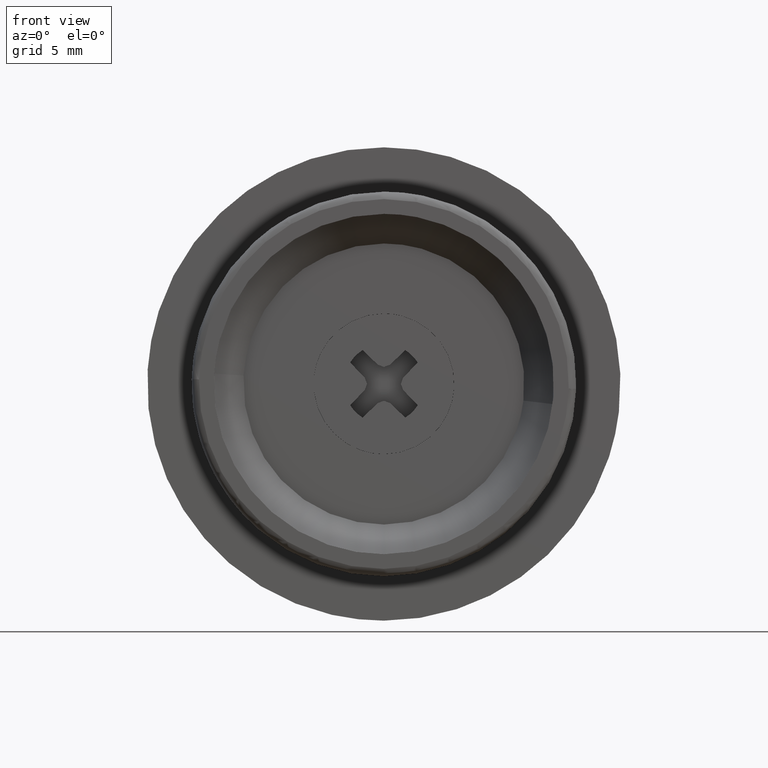
[diagram: clean part render]
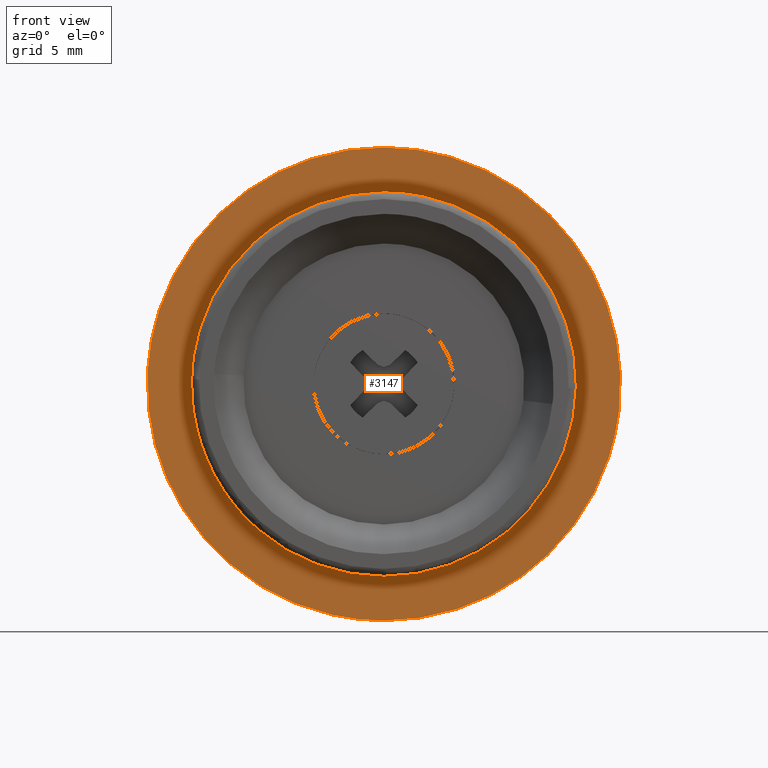
[diagram: same view with one face highlighted and labeled with its STEP entity id]
A machine part, front view. The second image highlights one B-rep face of the part: STEP entity #3147.
In plain terms, the highlighted face is a freeform B-spline surface patch.
Its self-contained STEP definition (entity closure, byte-faithful):
#1462=CARTESIAN_POINT('',(15.888153624431769,8.000000000000084,-1.888537636996336));
#1463=VERTEX_POINT('',#1462);
#1464=CARTESIAN_POINT('',(0.0,8.0,16.0));
#1465=VERTEX_POINT('',#1464);
#1466=CARTESIAN_POINT('',(15.888153624431771,8.000000000000084,-1.888537636996335));
#1467=CARTESIAN_POINT('',(15.999999999999998,8.0,-0.947580802194624));
#1468=CARTESIAN_POINT('',(16.0,8.0,-1.598567E-016));
#1469=CARTESIAN_POINT('',(15.999999999999998,8.0,15.999999999999998));
#1470=CARTESIAN_POINT('',(0.0,8.0,16.0));
#1478=(BOUNDED_CURVE()B_SPLINE_CURVE(2,(#1466,#1467,#1468,#1469,#1470),.UNSPECIFIED.,.F.,.U.)B_SPLINE_CURVE_WITH_KNOTS((3,2,3),(0.229562581136241,0.250000000000000,0.500000000000000),.UNSPECIFIED.)CURVE()GEOMETRIC_REPRESENTATION_ITEM()RATIONAL_B_SPLINE_CURVE((0.956026965128767,0.976056074419019,1.0,0.707106781186548,1.0))REPRESENTATION_ITEM(''));
#1479=EDGE_CURVE('',#1463,#1465,#1478,.T.);
#1520=CARTESIAN_POINT('',(-15.970157124285571,8.000000000000055,0.976770917665998));
#1521=VERTEX_POINT('',#1520);
#1527=CARTESIAN_POINT('',(0.0,8.0,16.0));
#1528=CARTESIAN_POINT('',(-15.051302466636239,8.0,16.0));
#1529=CARTESIAN_POINT('',(-15.970157124285565,8.000000000000055,0.976770917665998));
#1537=(BOUNDED_CURVE()B_SPLINE_CURVE(2,(#1527,#1528,#1529),.UNSPECIFIED.,.F.,.U.)B_SPLINE_CURVE_WITH_KNOTS((3,3),(0.500000000000000,0.739333023987528),.UNSPECIFIED.)CURVE()GEOMETRIC_REPRESENTATION_ITEM()RATIONAL_B_SPLINE_CURVE((1.0,0.719603920943743,0.976072174005725))REPRESENTATION_ITEM(''));
#1538=EDGE_CURVE('',#1465,#1521,#1537,.T.);
#1561=CARTESIAN_POINT('',(0.0,8.0,-16.0));
#1562=VERTEX_POINT('',#1561);
#1563=CARTESIAN_POINT('',(0.0,8.0,-16.0));
#1564=CARTESIAN_POINT('',(14.210801528304183,8.0,-16.0));
#1565=CARTESIAN_POINT('',(15.888153624431771,8.000000000000084,-1.888537636996335));
#1573=(BOUNDED_CURVE()B_SPLINE_CURVE(2,(#1563,#1564,#1565),.UNSPECIFIED.,.F.,.U.)B_SPLINE_CURVE_WITH_KNOTS((3,3),(0.0,0.229562581136241),.UNSPECIFIED.)CURVE()GEOMETRIC_REPRESENTATION_ITEM()RATIONAL_B_SPLINE_CURVE((1.0,0.731050706767529,0.956026965128767))REPRESENTATION_ITEM(''));
#1574=EDGE_CURVE('',#1562,#1463,#1573,.T.);
#1576=CARTESIAN_POINT('',(-15.970157124285565,8.000000000000055,0.976770917665998));
#1577=CARTESIAN_POINT('',(-16.0,8.0,0.488841347319644));
#1578=CARTESIAN_POINT('',(-16.0,8.0,-1.598567E-016));
#1579=CARTESIAN_POINT('',(-15.999999999999998,8.0,-15.999999999999998));
#1580=CARTESIAN_POINT('',(0.0,8.0,-16.0));
#1588=(BOUNDED_CURVE()B_SPLINE_CURVE(2,(#1576,#1577,#1578,#1579,#1580),.UNSPECIFIED.,.F.,.U.)B_SPLINE_CURVE_WITH_KNOTS((3,2,3),(0.739333023987528,0.750000000000000,1.0),.UNSPECIFIED.)CURVE()GEOMETRIC_REPRESENTATION_ITEM()RATIONAL_B_SPLINE_CURVE((0.976072174005725,0.987502860242804,1.0,0.707106781186548,1.0))REPRESENTATION_ITEM(''));
#1589=EDGE_CURVE('',#1521,#1562,#1588,.T.);
#1648=CARTESIAN_POINT('',(-8.506414486627739,8.000000000000005,-9.830610997373853));
#1649=VERTEX_POINT('',#1648);
#1650=CARTESIAN_POINT('',(0.0,8.0,-13.0));
#1651=VERTEX_POINT('',#1650);
#1652=CARTESIAN_POINT('',(-8.506414486627739,8.000000000000005,-9.830610997373853));
#1653=CARTESIAN_POINT('',(-4.843645592265626,8.0,-13.000000000000004));
#1654=CARTESIAN_POINT('',(0.0,8.0,-13.0));
#1662=(BOUNDED_CURVE()B_SPLINE_CURVE(2,(#1652,#1653,#1654),.UNSPECIFIED.,.F.,.U.)B_SPLINE_CURVE_WITH_KNOTS((3,3),(0.885882136153578,1.0),.UNSPECIFIED.)CURVE()GEOMETRIC_REPRESENTATION_ITEM()RATIONAL_B_SPLINE_CURVE((0.854663300188339,0.866302606135625,1.0))REPRESENTATION_ITEM(''));
#1663=EDGE_CURVE('',#1649,#1651,#1662,.T.);
#1665=CARTESIAN_POINT('',(0.0,8.0,13.0));
#1666=VERTEX_POINT('',#1665);
#1667=CARTESIAN_POINT('',(0.0,8.0,-13.0));
#1668=CARTESIAN_POINT('',(13.0,8.0,-13.0));
#1669=CARTESIAN_POINT('',(13.0,8.0,-1.598567E-016));
#1670=CARTESIAN_POINT('',(13.0,8.0,13.0));
#1671=CARTESIAN_POINT('',(0.0,8.0,13.0));
#1679=(BOUNDED_CURVE()B_SPLINE_CURVE(2,(#1667,#1668,#1669,#1670,#1671),.UNSPECIFIED.,.F.,.U.)B_SPLINE_CURVE_WITH_KNOTS((3,2,3),(0.0,0.250000000000000,0.500000000000000),.UNSPECIFIED.)CURVE()GEOMETRIC_REPRESENTATION_ITEM()RATIONAL_B_SPLINE_CURVE((1.0,0.707106781186547,1.0,0.707106781186547,1.0))REPRESENTATION_ITEM(''));
#1680=EDGE_CURVE('',#1651,#1666,#1679,.T.);
#1682=CARTESIAN_POINT('',(-8.782672515024615,8.0,9.584605547117267));
#1683=VERTEX_POINT('',#1682);
#1684=CARTESIAN_POINT('',(0.0,8.0,13.0));
#1685=CARTESIAN_POINT('',(-5.055423226813714,8.0,13.0));
#1686=CARTESIAN_POINT('',(-8.782672515024615,8.0,9.584605547117267));
#1694=(BOUNDED_CURVE()B_SPLINE_CURVE(2,(#1684,#1685,#1686),.UNSPECIFIED.,.F.,.U.)B_SPLINE_CURVE_WITH_KNOTS((3,3),(0.500000000000000,0.618415203288633),.UNSPECIFIED.)CURVE()GEOMETRIC_REPRESENTATION_ITEM()RATIONAL_B_SPLINE_CURVE((1.0,0.861267959809372,0.853959781553304))REPRESENTATION_ITEM(''));
#1695=EDGE_CURVE('',#1666,#1683,#1694,.T.);
#1792=CARTESIAN_POINT('',(-8.782672515024615,8.0,9.584605547117267));
#1793=CARTESIAN_POINT('',(-12.999999999999995,8.0,5.720137199445113));
#1794=CARTESIAN_POINT('',(-13.0,8.0,-1.598567E-016));
#1795=CARTESIAN_POINT('',(-13.0,8.000000000000002,-5.942317490687382));
#1796=CARTESIAN_POINT('',(-8.506414486627739,8.000000000000005,-9.830610997373853));
#1804=(BOUNDED_CURVE()B_SPLINE_CURVE(2,(#1792,#1793,#1794,#1795,#1796),.UNSPECIFIED.,.F.,.U.)B_SPLINE_CURVE_WITH_KNOTS((3,2,3),(0.618415203288632,0.750000000000000,0.885882136153578),.UNSPECIFIED.)CURVE()GEOMETRIC_REPRESENTATION_ITEM()RATIONAL_B_SPLINE_CURVE((0.853959781553304,0.845838821377175,1.0,0.840804175050922,0.854663300188339))REPRESENTATION_ITEM(''));
#1805=EDGE_CURVE('',#1683,#1649,#1804,.T.);
#3130=CARTESIAN_POINT('',(-17.598011413378700,8.0,17.598399937977788));
#3131=CARTESIAN_POINT('',(-17.598011413378700,8.0,-17.598400796284679));
#3132=CARTESIAN_POINT('',(17.598108974261280,8.0,17.598399937977788));
#3133=CARTESIAN_POINT('',(17.598108974261280,8.0,-17.598400796284679));
#3134=B_SPLINE_SURFACE_WITH_KNOTS('',1,1,((#3130,#3132),(#3131,#3133)),.UNSPECIFIED.,.F.,.F.,.U.,(2,2),(2,2),(0.0,35.196800734262467),(0.0,35.196120387639979),.UNSPECIFIED.);
#3135=ORIENTED_EDGE('',*,*,#1574,.T.);
#3136=ORIENTED_EDGE('',*,*,#1479,.T.);
#3137=ORIENTED_EDGE('',*,*,#1538,.T.);
#3138=ORIENTED_EDGE('',*,*,#1589,.T.);
#3139=EDGE_LOOP('',(#3135,#3136,#3137,#3138));
#3140=FACE_OUTER_BOUND('',#3139,.T.);
#3141=ORIENTED_EDGE('',*,*,#1680,.F.);
#3142=ORIENTED_EDGE('',*,*,#1663,.F.);
#3143=ORIENTED_EDGE('',*,*,#1805,.F.);
#3144=ORIENTED_EDGE('',*,*,#1695,.F.);
#3145=EDGE_LOOP('',(#3141,#3142,#3143,#3144));
#3146=FACE_BOUND('',#3145,.T.);
#3147=ADVANCED_FACE('',(#3140,#3146),#3134,.T.);